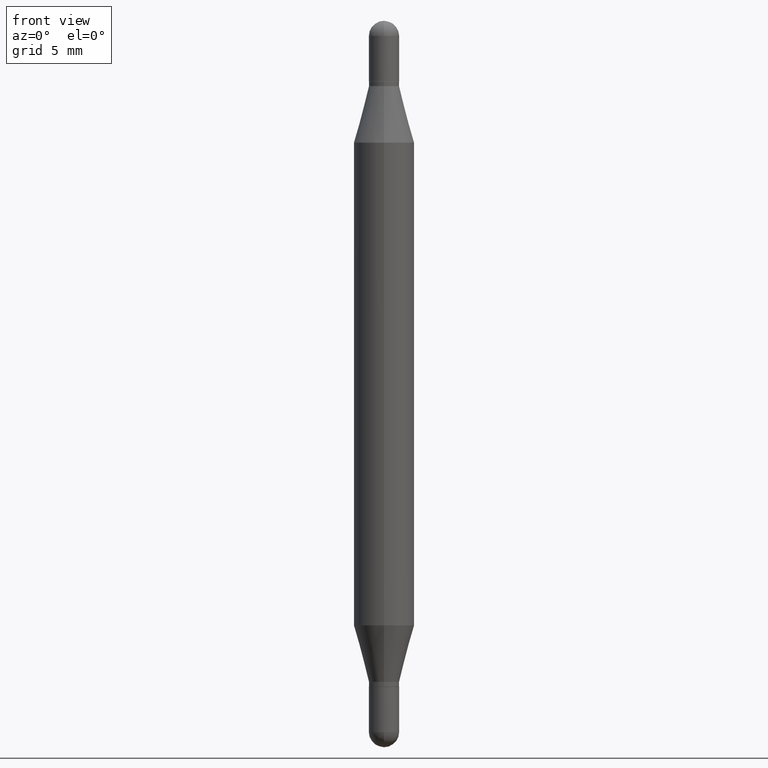
[diagram: clean part render]
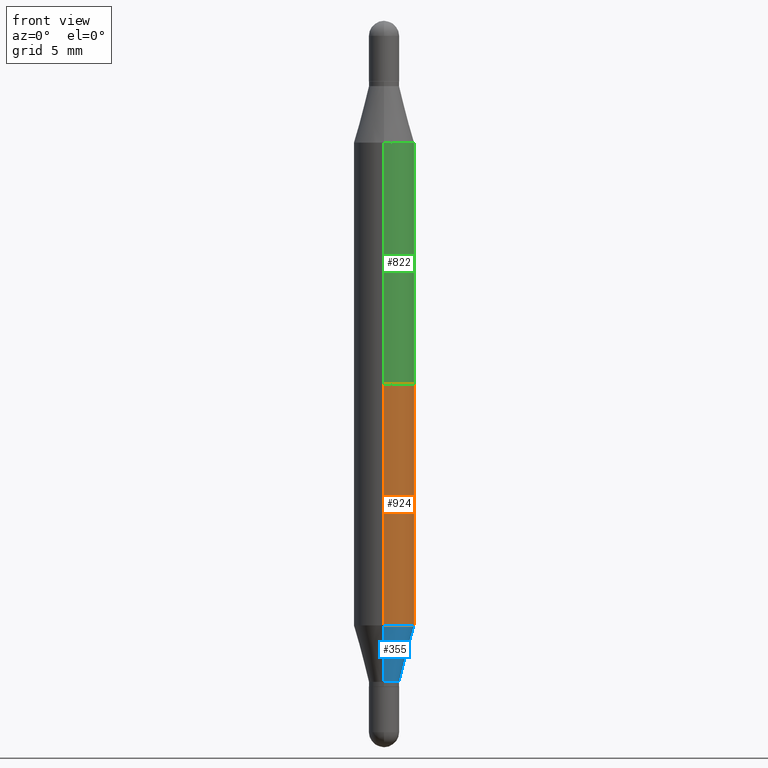
[diagram: same view with three faces highlighted in distinct colors, each labeled with its STEP entity id]
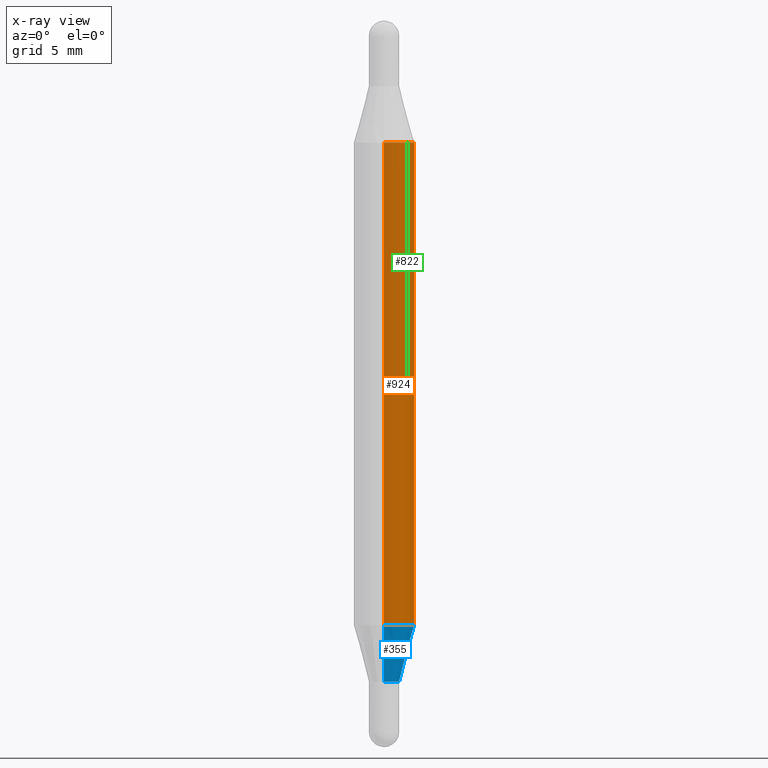
[diagram: x-ray of the same camera — body ghosted, the three highlighted faces saturated]
A machine part, front view with three faces highlighted in distinct colors.
The next image is the same camera in x-ray (body ghosted, the three faces saturated) — at least one of them is partly hidden behind the body in this view.
Their STEP definitions:

[orange] entity #924 — the highlighted cylindrical surface (edge-blend (fillet) strip) has radius 1.5875 mm, axis along (-0, -0, -1).
#4 = AXIS2_PLACEMENT_3D ( 'NONE', #644, #477, #229 ) ;
#67 = DIRECTION ( 'NONE',  ( 2.445713532774294348E-29, 3.479964929382474703E-15, 1.000000000000000000 ) ) ;
#73 = CARTESIAN_POINT ( 'NONE',  ( 3.053163748328396024E-29, -8.840261609153203283E-16, -0.2516265877365286285 ) ) ;
#139 = FACE_OUTER_BOUND ( 'NONE', #760, .T. ) ;
#148 = AXIS2_PLACEMENT_3D ( 'NONE', #73, #67, #568 ) ;
#229 = DIRECTION ( 'NONE',  ( -6.982962677686265922E-15, -1.000000000000000000, 4.370956789862821150E-15 ) ) ;
#231 = CARTESIAN_POINT ( 'NONE',  ( -4.364351673553610517E-16, -0.06250000000000088818, -0.2516265877365284065 ) ) ;
#265 = ORIENTED_EDGE ( 'NONE', *, *, #436, .T. ) ;
#269 = VECTOR ( 'NONE', #535, 39.37007874015748143 ) ;
#296 = CARTESIAN_POINT ( 'NONE',  ( -4.364351673553916201E-16, -0.06250000000000521805, -1.500000000000000222 ) ) ;
#310 = ORIENTED_EDGE ( 'NONE', *, *, #719, .F. ) ;
#332 = LINE ( 'NONE', #583, #569 ) ;
#348 = DIRECTION ( 'NONE',  ( -2.445713532774294068E-29, -3.479964929382475098E-15, -1.000000000000000000 ) ) ;
#393 = CIRCLE ( 'NONE', #811, 0.06250000000000000000 ) ;
#405 = ORIENTED_EDGE ( 'NONE', *, *, #781, .T. ) ;
#410 = VERTEX_POINT ( 'NONE', #231 ) ;
#436 = EDGE_CURVE ( 'NONE', #693, #894, #393, .T. ) ;
#477 = DIRECTION ( 'NONE',  ( -2.445713532774294348E-29, -3.479964929382474703E-15, -1.000000000000000000 ) ) ;
#509 = CARTESIAN_POINT ( 'NONE',  ( -4.364351673553611010E-16, -0.06250000000000435763, -1.248373412263471538 ) ) ;
#522 = CARTESIAN_POINT ( 'NONE',  ( 4.287811248607511431E-16, 0.06249999999999909100, -0.2516265877365287951 ) ) ;
#535 = DIRECTION ( 'NONE',  ( -2.445713532774294068E-29, -3.479964929382475098E-15, -1.000000000000000000 ) ) ;
#568 = DIRECTION ( 'NONE',  ( -6.982962677686265922E-15, -1.000000000000000000, 3.278217592397115862E-15 ) ) ;
#569 = VECTOR ( 'NONE', #348, 39.37007874015748143 ) ;
#571 = DIRECTION ( 'NONE',  ( -6.982962677686265922E-15, -1.000000000000000000, 4.370956789862821150E-15 ) ) ;
#583 = CARTESIAN_POINT ( 'NONE',  ( 4.287811248607206733E-16, 0.06249999999999477501, -1.500000000000000666 ) ) ;
#625 = ORIENTED_EDGE ( 'NONE', *, *, #943, .F. ) ;
#644 = CARTESIAN_POINT ( 'NONE',  ( 0.000000000000000000, -5.228321854365732350E-15, -1.500000000000000444 ) ) ;
#646 = CARTESIAN_POINT ( 'NONE',  ( 3.053163748328396024E-29, -4.358234964877894305E-15, -1.248373412263471760 ) ) ;
#693 = VERTEX_POINT ( 'NONE', #509 ) ;
#719 = EDGE_CURVE ( 'NONE', #821, #894, #332, .T. ) ;
#728 = CYLINDRICAL_SURFACE ( 'NONE', #4, 0.06250000000000000000 ) ;
#760 = EDGE_LOOP ( 'NONE', ( #310, #625, #405, #265 ) ) ;
#781 = EDGE_CURVE ( 'NONE', #410, #693, #1043, .T. ) ;
#811 = AXIS2_PLACEMENT_3D ( 'NONE', #646, #839, #571 ) ;
#821 = VERTEX_POINT ( 'NONE', #522 ) ;
#839 = DIRECTION ( 'NONE',  ( -2.445713532774294348E-29, 3.491130876438499133E-15, 1.000000000000000000 ) ) ;
#894 = VERTEX_POINT ( 'NONE', #910 ) ;
#910 = CARTESIAN_POINT ( 'NONE',  ( 4.287811248607389158E-16, 0.06249999999999563544, -1.248373412263471982 ) ) ;
#924 = ADVANCED_FACE ( 'NONE', ( #139 ), #728, .T. ) ;
#943 = EDGE_CURVE ( 'NONE', #410, #821, #1027, .T. ) ;
#1027 = CIRCLE ( 'NONE', #148, 0.06250000000000000000 ) ;
#1043 = LINE ( 'NONE', #296, #269 ) ;

[blue] entity #355 — the highlighted conical surface has half-angle 15 deg.
#27 = CARTESIAN_POINT ( 'NONE',  ( 3.338398972236912231E-29, -4.765393646338551065E-15, -1.364999999999999991 ) ) ;
#32 = FACE_OUTER_BOUND ( 'NONE', #49, .T. ) ;
#39 = CIRCLE ( 'NONE', #342, 0.03124999999999964959 ) ;
#49 = EDGE_LOOP ( 'NONE', ( #515, #192, #397, #768 ) ) ;
#101 = LINE ( 'NONE', #713, #373 ) ;
#160 = CARTESIAN_POINT ( 'NONE',  ( -2.182175836776599662E-16, -0.03125000000000441314, -1.364999999999999991 ) ) ;
#192 = ORIENTED_EDGE ( 'NONE', *, *, #909, .T. ) ;
#221 = DIRECTION ( 'NONE',  ( 1.839019923739600710E-15, 0.2588190451025250138, 0.9659258262890670910 ) ) ;
#238 = VERTEX_POINT ( 'NONE', #787 ) ;
#273 = EDGE_CURVE ( 'NONE', #1048, #238, #39, .T. ) ;
#287 = CONICAL_SURFACE ( 'NONE', #467, 0.03124999999999964959, 0.2617993877991502960 ) ;
#342 = AXIS2_PLACEMENT_3D ( 'NONE', #27, #368, #543 ) ;
#355 = ADVANCED_FACE ( 'NONE', ( #32 ), #287, .T. ) ;
#368 = DIRECTION ( 'NONE',  ( -2.445713532774294348E-29, 3.491130876438499133E-15, 1.000000000000000000 ) ) ;
#373 = VECTOR ( 'NONE', #525, 39.37007874015748143 ) ;
#393 = CIRCLE ( 'NONE', #811, 0.06250000000000000000 ) ;
#397 = ORIENTED_EDGE ( 'NONE', *, *, #436, .F. ) ;
#436 = EDGE_CURVE ( 'NONE', #693, #894, #393, .T. ) ;
#467 = AXIS2_PLACEMENT_3D ( 'NONE', #803, #723, #710 ) ;
#509 = CARTESIAN_POINT ( 'NONE',  ( -4.364351673553611010E-16, -0.06250000000000435763, -1.248373412263471538 ) ) ;
#515 = ORIENTED_EDGE ( 'NONE', *, *, #273, .T. ) ;
#525 = DIRECTION ( 'NONE',  ( -1.807323732225330534E-15, -0.2588190451025182415, 0.9659258262890689783 ) ) ;
#543 = DIRECTION ( 'NONE',  ( -6.982962677686265133E-15, -1.000000000000000000, 0.000000000000000000 ) ) ;
#571 = DIRECTION ( 'NONE',  ( -6.982962677686265922E-15, -1.000000000000000000, 4.370956789862821150E-15 ) ) ;
#646 = CARTESIAN_POINT ( 'NONE',  ( 3.053163748328396024E-29, -4.358234964877894305E-15, -1.248373412263471760 ) ) ;
#693 = VERTEX_POINT ( 'NONE', #509 ) ;
#710 = DIRECTION ( 'NONE',  ( -6.982962677686265133E-15, -1.000000000000000000, 0.000000000000000000 ) ) ;
#713 = CARTESIAN_POINT ( 'NONE',  ( -2.182175836776599662E-16, -0.03125000000000441314, -1.364999999999999991 ) ) ;
#723 = DIRECTION ( 'NONE',  ( -2.445713532774294348E-29, 3.491130876438499133E-15, 1.000000000000000000 ) ) ;
#744 = LINE ( 'NONE', #1075, #950 ) ;
#747 = EDGE_CURVE ( 'NONE', #1048, #693, #101, .T. ) ;
#768 = ORIENTED_EDGE ( 'NONE', *, *, #747, .F. ) ;
#787 = CARTESIAN_POINT ( 'NONE',  ( 2.220446049250623695E-16, 0.03124999999999488257, -1.364999999999999991 ) ) ;
#803 = CARTESIAN_POINT ( 'NONE',  ( 3.338398972236912231E-29, -4.765393646338551065E-15, -1.364999999999999991 ) ) ;
#811 = AXIS2_PLACEMENT_3D ( 'NONE', #646, #839, #571 ) ;
#839 = DIRECTION ( 'NONE',  ( -2.445713532774294348E-29, 3.491130876438499133E-15, 1.000000000000000000 ) ) ;
#894 = VERTEX_POINT ( 'NONE', #910 ) ;
#909 = EDGE_CURVE ( 'NONE', #238, #894, #744, .T. ) ;
#910 = CARTESIAN_POINT ( 'NONE',  ( 4.287811248607389158E-16, 0.06249999999999563544, -1.248373412263471982 ) ) ;
#950 = VECTOR ( 'NONE', #221, 39.37007874015748143 ) ;
#1048 = VERTEX_POINT ( 'NONE', #160 ) ;
#1075 = CARTESIAN_POINT ( 'NONE',  ( 2.220446049250621723E-16, 0.03124999999999488604, -1.364999999999999991 ) ) ;

[green] entity #822 — the highlighted cylindrical surface (edge-blend (fillet) strip) has radius 1.5875 mm, axis along (-0, -0, -1).
#15 = ORIENTED_EDGE ( 'NONE', *, *, #988, .T. ) ;
#19 = FACE_OUTER_BOUND ( 'NONE', #926, .T. ) ;
#37 = DIRECTION ( 'NONE',  ( 2.445713532774294348E-29, 3.479964929382474703E-15, 1.000000000000000000 ) ) ;
#52 = CARTESIAN_POINT ( 'NONE',  ( -4.364351673553916201E-16, -0.06250000000000521805, -1.500000000000000222 ) ) ;
#119 = DIRECTION ( 'NONE',  ( -6.982962677686265922E-15, -1.000000000000000000, 4.370956789862821150E-15 ) ) ;
#154 = VECTOR ( 'NONE', #660, 39.37007874015748143 ) ;
#173 = LINE ( 'NONE', #336, #501 ) ;
#186 = CYLINDRICAL_SURFACE ( 'NONE', #763, 0.06250000000000000000 ) ;
#203 = CARTESIAN_POINT ( 'NONE',  ( 0.000000000000000000, -5.228321854365732350E-15, -1.500000000000000444 ) ) ;
#245 = VERTEX_POINT ( 'NONE', #331 ) ;
#272 = DIRECTION ( 'NONE',  ( -6.982962677686265922E-15, -1.000000000000000000, 3.278217592397115862E-15 ) ) ;
#279 = CARTESIAN_POINT ( 'NONE',  ( 4.287811248607451280E-16, 0.06249999999999737710, -0.7500000000000004441 ) ) ;
#331 = CARTESIAN_POINT ( 'NONE',  ( -4.364351673553731805E-16, -0.06250000000000262290, -0.7499999999999998890 ) ) ;
#333 = ORIENTED_EDGE ( 'NONE', *, *, #732, .F. ) ;
#334 = VERTEX_POINT ( 'NONE', #279 ) ;
#336 = CARTESIAN_POINT ( 'NONE',  ( 4.287811248607206733E-16, 0.06249999999999477501, -1.500000000000000666 ) ) ;
#338 = AXIS2_PLACEMENT_3D ( 'NONE', #976, #702, #629 ) ;
#432 = CIRCLE ( 'NONE', #866, 0.06250000000000000000 ) ;
#499 = VERTEX_POINT ( 'NONE', #1085 ) ;
#501 = VECTOR ( 'NONE', #505, 39.37007874015748143 ) ;
#505 = DIRECTION ( 'NONE',  ( -2.445713532774294068E-29, -3.479964929382475098E-15, -1.000000000000000000 ) ) ;
#520 = ORIENTED_EDGE ( 'NONE', *, *, #628, .F. ) ;
#532 = DIRECTION ( 'NONE',  ( -2.445713532774294348E-29, -3.479964929382474703E-15, -1.000000000000000000 ) ) ;
#628 = EDGE_CURVE ( 'NONE', #686, #334, #173, .T. ) ;
#629 = DIRECTION ( 'NONE',  ( 0.000000000000000000, 1.000000000000000000, -4.370956789862821150E-15 ) ) ;
#660 = DIRECTION ( 'NONE',  ( -2.445713532774294068E-29, -3.479964929382475098E-15, -1.000000000000000000 ) ) ;
#686 = VERTEX_POINT ( 'NONE', #765 ) ;
#702 = DIRECTION ( 'NONE',  ( -0.000000000000000000, -3.485547902910486918E-15, -1.000000000000000000 ) ) ;
#732 = EDGE_CURVE ( 'NONE', #499, #686, #432, .T. ) ;
#763 = AXIS2_PLACEMENT_3D ( 'NONE', #203, #532, #119 ) ;
#765 = CARTESIAN_POINT ( 'NONE',  ( 4.287811248607511431E-16, 0.06249999999999909100, -0.2516265877365287951 ) ) ;
#802 = CARTESIAN_POINT ( 'NONE',  ( 3.053163748328396024E-29, -8.840261609153203283E-16, -0.2516265877365286285 ) ) ;
#809 = EDGE_CURVE ( 'NONE', #334, #245, #829, .T. ) ;
#818 = LINE ( 'NONE', #52, #154 ) ;
#822 = ADVANCED_FACE ( 'NONE', ( #19 ), #186, .T. ) ;
#829 = CIRCLE ( 'NONE', #338, 0.06250000000000000000 ) ;
#866 = AXIS2_PLACEMENT_3D ( 'NONE', #802, #37, #272 ) ;
#926 = EDGE_LOOP ( 'NONE', ( #520, #333, #15, #961 ) ) ;
#961 = ORIENTED_EDGE ( 'NONE', *, *, #809, .F. ) ;
#976 = CARTESIAN_POINT ( 'NONE',  ( 1.834285149580721181E-29, -2.618348157328875139E-15, -0.7500000000000002220 ) ) ;
#988 = EDGE_CURVE ( 'NONE', #499, #245, #818, .T. ) ;
#1085 = CARTESIAN_POINT ( 'NONE',  ( -4.364351673553610517E-16, -0.06250000000000088818, -0.2516265877365284065 ) ) ;